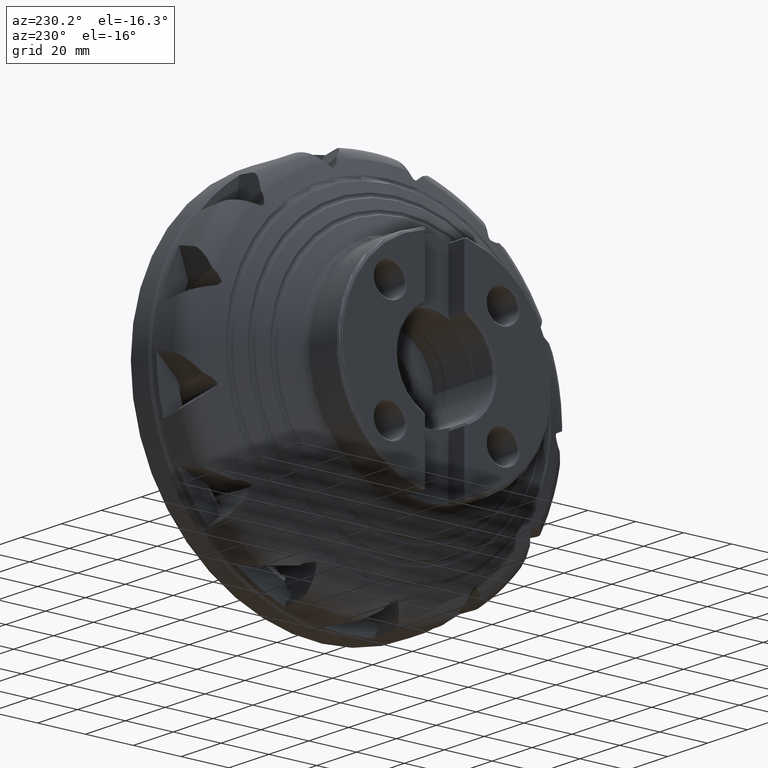
[diagram: clean part render]
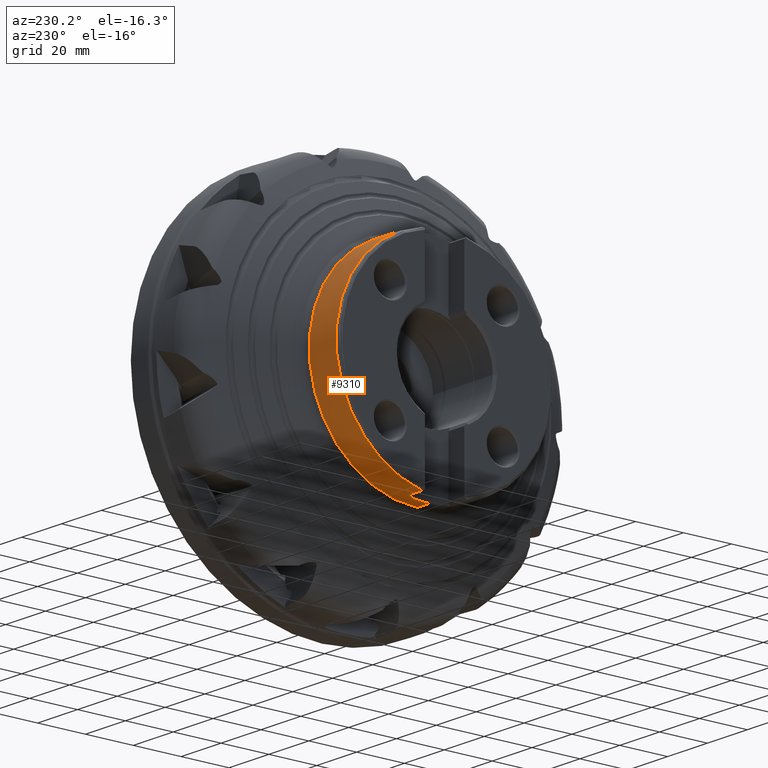
[diagram: same view with one face highlighted and labeled with its STEP entity id]
A machine part, auxiliary view. The second image highlights one B-rep face of the part: STEP entity #9310.
In plain terms, the highlighted cylindrical surface (partial cylindrical patch) has radius 45 mm, axis along (1, -0, -0).
Its self-contained STEP definition (entity closure, byte-faithful):
#3492 = CARTESIAN_POINT ( 'NONE',  ( -46.25000000000000000, 0.0000000000000000000, -44.99999999999998600 ) ) ;
#3564 = CARTESIAN_POINT ( 'NONE',  ( -59.75000000000001400, 9.170586121755627900, -44.05565060447368400 ) ) ;
#3581 = CARTESIAN_POINT ( 'NONE',  ( -52.25000000000001400, 9.170586121755620800, -44.05565060447367600 ) ) ;
#3586 = CARTESIAN_POINT ( 'NONE',  ( -59.75000000000001400, 9.170586121755622600, 44.05565060447368400 ) ) ;
#5967 = VERTEX_POINT ( 'NONE', #15147 ) ;
#6797 = CARTESIAN_POINT ( 'NONE',  ( -52.25000000000001400, 0.0000000000000000000, -44.99999999999998600 ) ) ;
#6811 = CARTESIAN_POINT ( 'NONE',  ( -52.25000000000001400, 5.510910596163087200E-015, 44.99999999999998600 ) ) ;
#6825 = CARTESIAN_POINT ( 'NONE',  ( -46.25000000000000000, 5.608116404033093100E-015, 44.99999999999998600 ) ) ;
#9310 = ADVANCED_FACE ( 'NONE', ( #17986 ), #17989, .T. ) ;
#9363 = EDGE_CURVE ( 'NONE', #10053, #13187, #18088, .T. ) ;
#9364 = EDGE_CURVE ( 'NONE', #12683, #13157, #18090, .T. ) ;
#9365 = EDGE_CURVE ( 'NONE', #12683, #12665, #18087, .T. ) ;
#9366 = EDGE_CURVE ( 'NONE', #13173, #13187, #18089, .T. ) ;
#9367 = EDGE_CURVE ( 'NONE', #13173, #5967, #18095, .T. ) ;
#9368 = EDGE_CURVE ( 'NONE', #13157, #10053, #18066, .T. ) ;
#9369 = EDGE_CURVE ( 'NONE', #12665, #12688, #18097, .T. ) ;
#9370 = EDGE_CURVE ( 'NONE', #12688, #5967, #18092, .T. ) ;
#10053 = VERTEX_POINT ( 'NONE', #3492 ) ;
#11958 = EDGE_LOOP ( 'NONE', ( #12227, #12327, #12351, #12144, #12445, #12652, #12541, #12575 ) ) ;
#12144 = ORIENTED_EDGE ( 'NONE', *, *, #9368, .F. ) ;
#12227 = ORIENTED_EDGE ( 'NONE', *, *, #9367, .F. ) ;
#12327 = ORIENTED_EDGE ( 'NONE', *, *, #9366, .T. ) ;
#12351 = ORIENTED_EDGE ( 'NONE', *, *, #9363, .F. ) ;
#12445 = ORIENTED_EDGE ( 'NONE', *, *, #9364, .F. ) ;
#12541 = ORIENTED_EDGE ( 'NONE', *, *, #9369, .T. ) ;
#12575 = ORIENTED_EDGE ( 'NONE', *, *, #9370, .T. ) ;
#12652 = ORIENTED_EDGE ( 'NONE', *, *, #9365, .T. ) ;
#12665 = VERTEX_POINT ( 'NONE', #3564 ) ;
#12683 = VERTEX_POINT ( 'NONE', #3581 ) ;
#12688 = VERTEX_POINT ( 'NONE', #3586 ) ;
#13157 = VERTEX_POINT ( 'NONE', #6797 ) ;
#13173 = VERTEX_POINT ( 'NONE', #6811 ) ;
#13187 = VERTEX_POINT ( 'NONE', #6825 ) ;
#15147 = CARTESIAN_POINT ( 'NONE',  ( -52.25000000000001400, 9.170586121755620800, 44.05565060447367600 ) ) ;
#16932 = AXIS2_PLACEMENT_3D ( 'NONE', #20441, #20440, #20439 ) ;
#16966 = AXIS2_PLACEMENT_3D ( 'NONE', #20583, #20584, #20585 ) ;
#16967 = AXIS2_PLACEMENT_3D ( 'NONE', #20569, #20581, #20582 ) ;
#16970 = AXIS2_PLACEMENT_3D ( 'NONE', #20589, #20592, #20593 ) ;
#16972 = AXIS2_PLACEMENT_3D ( 'NONE', #20586, #20596, #20597 ) ;
#17986 = FACE_OUTER_BOUND ( 'NONE', #11958, .T. ) ;
#17989 = CYLINDRICAL_SURFACE ( 'NONE', #16932, 44.99999999999998600 ) ;
#18066 = LINE ( 'NONE', #20594, #18083 ) ;
#18082 = VECTOR ( 'NONE', #20588, 1000.000000000000000 ) ;
#18083 = VECTOR ( 'NONE', #20595, 1000.000000000000000 ) ;
#18087 = LINE ( 'NONE', #20587, #18082 ) ;
#18088 = CIRCLE ( 'NONE', #16967, 44.99999999999998600 ) ;
#18089 = LINE ( 'NONE', #20580, #18091 ) ;
#18090 = CIRCLE ( 'NONE', #16966, 44.99999999999998600 ) ;
#18091 = VECTOR ( 'NONE', #20590, 1000.000000000000000 ) ;
#18092 = LINE ( 'NONE', #20598, #18094 ) ;
#18094 = VECTOR ( 'NONE', #20599, 1000.000000000000000 ) ;
#18095 = CIRCLE ( 'NONE', #16970, 44.99999999999998600 ) ;
#18097 = CIRCLE ( 'NONE', #16972, 44.99999999999999300 ) ;
#20439 = DIRECTION ( 'NONE',  ( 0.0000000000000000000, 0.0000000000000000000, -1.000000000000000000 ) ) ;
#20440 = DIRECTION ( 'NONE',  ( 1.000000000000000000, -0.0000000000000000000, -0.0000000000000000000 ) ) ;
#20441 = CARTESIAN_POINT ( 'NONE',  ( 0.0000000000000000000, 0.0000000000000000000, 0.0000000000000000000 ) ) ;
#20569 = CARTESIAN_POINT ( 'NONE',  ( -46.25000000000000000, 0.0000000000000000000, 0.0000000000000000000 ) ) ;
#20580 = CARTESIAN_POINT ( 'NONE',  ( 0.0000000000000000000, 5.510910596163087200E-015, 44.99999999999998600 ) ) ;
#20581 = DIRECTION ( 'NONE',  ( 1.000000000000000000, -0.0000000000000000000, -0.0000000000000000000 ) ) ;
#20582 = DIRECTION ( 'NONE',  ( 0.0000000000000000000, 0.0000000000000000000, -1.000000000000000000 ) ) ;
#20583 = CARTESIAN_POINT ( 'NONE',  ( -52.25000000000001400, 0.0000000000000000000, 0.0000000000000000000 ) ) ;
#20584 = DIRECTION ( 'NONE',  ( -1.000000000000000000, -0.0000000000000000000, -0.0000000000000000000 ) ) ;
#20585 = DIRECTION ( 'NONE',  ( 0.0000000000000000000, 7.993605777301127100E-015, -1.000000000000000000 ) ) ;
#20586 = CARTESIAN_POINT ( 'NONE',  ( -59.75000000000001400, 0.0000000000000000000, 0.0000000000000000000 ) ) ;
#20587 = CARTESIAN_POINT ( 'NONE',  ( 0.0000000000000000000, 9.170586121755622600, -44.05565060447368400 ) ) ;
#20588 = DIRECTION ( 'NONE',  ( -1.000000000000000000, 0.0000000000000000000, 0.0000000000000000000 ) ) ;
#20589 = CARTESIAN_POINT ( 'NONE',  ( -52.25000000000001400, 0.0000000000000000000, 0.0000000000000000000 ) ) ;
#20590 = DIRECTION ( 'NONE',  ( 1.000000000000000000, -0.0000000000000000000, -0.0000000000000000000 ) ) ;
#20592 = DIRECTION ( 'NONE',  ( -1.000000000000000000, -0.0000000000000000000, -0.0000000000000000000 ) ) ;
#20593 = DIRECTION ( 'NONE',  ( 0.0000000000000000000, 0.0000000000000000000, -1.000000000000000000 ) ) ;
#20594 = CARTESIAN_POINT ( 'NONE',  ( 0.0000000000000000000, 0.0000000000000000000, -44.99999999999998600 ) ) ;
#20595 = DIRECTION ( 'NONE',  ( 1.000000000000000000, -0.0000000000000000000, -0.0000000000000000000 ) ) ;
#20596 = DIRECTION ( 'NONE',  ( 1.000000000000000000, -0.0000000000000000000, -0.0000000000000000000 ) ) ;
#20597 = DIRECTION ( 'NONE',  ( 0.0000000000000000000, 0.0000000000000000000, -1.000000000000000000 ) ) ;
#20598 = CARTESIAN_POINT ( 'NONE',  ( 0.0000000000000000000, 9.170586121755622600, 44.05565060447368400 ) ) ;
#20599 = DIRECTION ( 'NONE',  ( 1.000000000000000000, -0.0000000000000000000, -0.0000000000000000000 ) ) ;